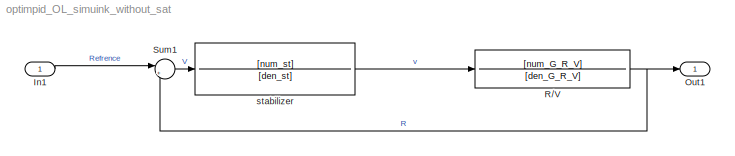
MODEL optimpid_OL_simuink_without_sat
KIND model
BLOCK [Inport] In1
  SID = 2
BLOCK [Outport] Out1
  SID = 1
BLOCK [TransferFcn] R//V
  Denominator = [den_G_R_V]
  Numerator = [num_G_R_V]
  SID = 8
BLOCK [Sum] Sum1
  Inputs = |+-
  Ports = [2, 1]
  SID = 9
BLOCK [TransferFcn] stabilizer
  Denominator = [den_st]
  Numerator = [num_st]
  SID = 10
LINE In1:1 -> Sum1:1
NET R//V:1 -> Out1:1, Sum1:2
LINE Sum1:1 -> stabilizer:1
LINE stabilizer:1 -> R//V:1
note: NET lines group one-source signal fan-out (src -> all destinations, sorted); 1:1 wires keep LINE
